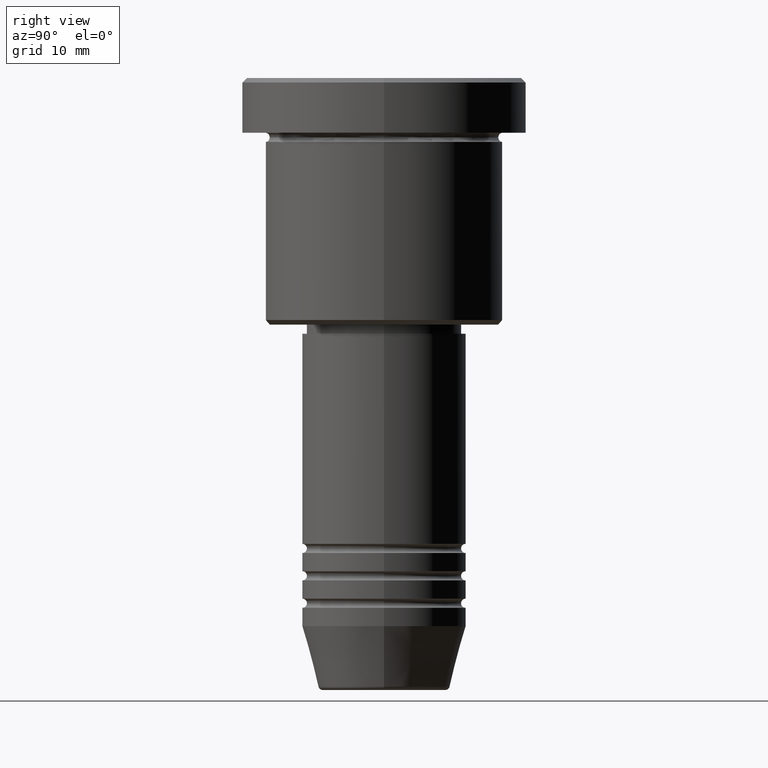
[diagram: clean part render]
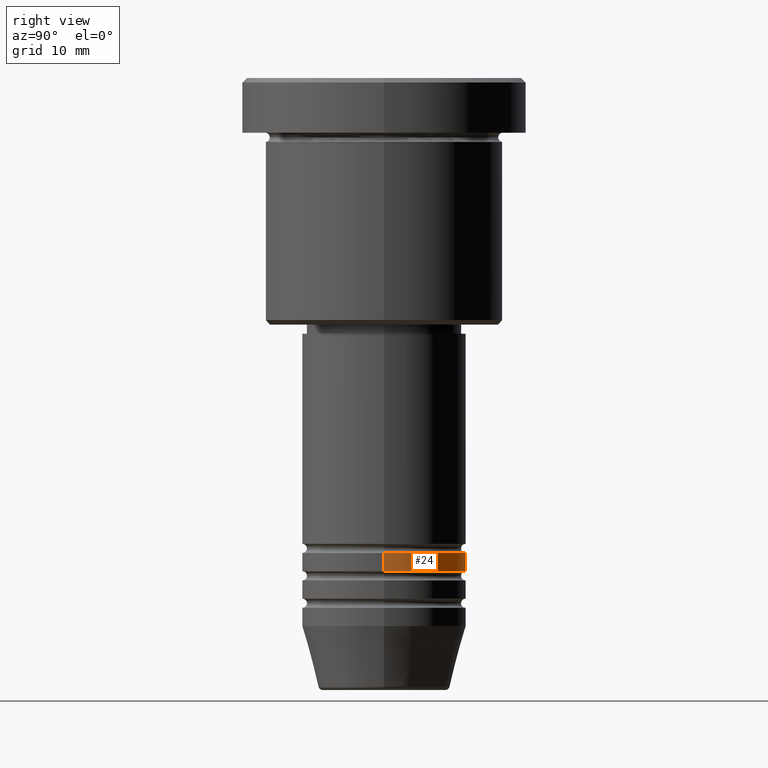
[diagram: same view with one face highlighted and labeled with its STEP entity id]
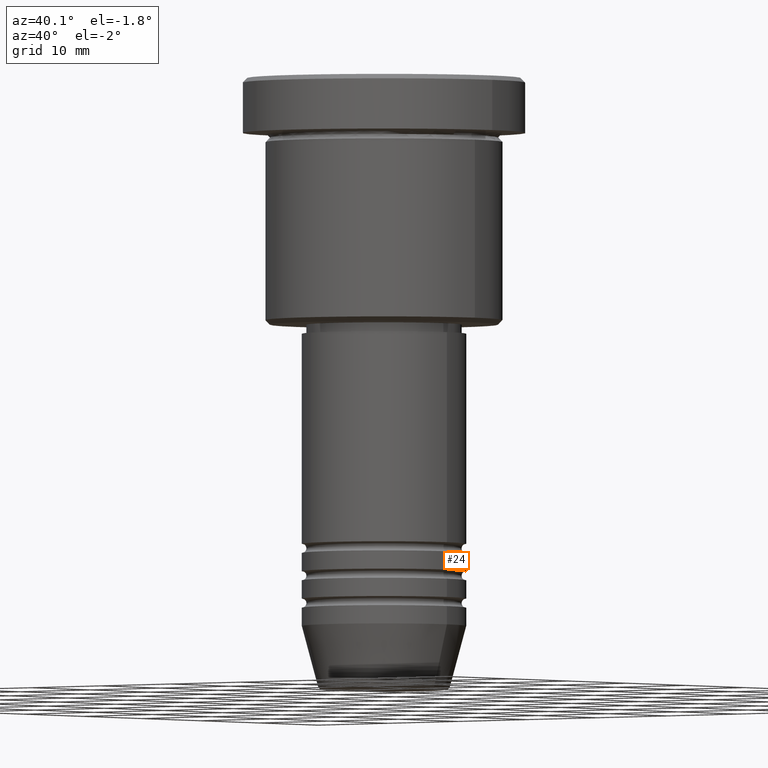
[diagram: same view with one face highlighted and labeled with its STEP entity id]
A machine part, right view. The second image highlights one B-rep face of the part: STEP entity #24.
A second angle (auxiliary view) of the same face is appended — the face is thin or edge-on in the first view.
In plain terms, the highlighted cylindrical surface (partial cylindrical patch) has radius 9 mm, axis along (-0, -0, 1).
Its self-contained STEP definition (entity closure, byte-faithful):
#24 = ADVANCED_FACE ( 'NONE', ( #1114 ), #189, .T. ) ;
#25 = DIRECTION ( 'NONE',  ( -0.000000000000000000, -0.000000000000000000, 1.000000000000000000 ) ) ;
#50 = ORIENTED_EDGE ( 'NONE', *, *, #260, .T. ) ;
#65 = EDGE_CURVE ( 'NONE', #514, #1129, #1011, .T. ) ;
#74 = DIRECTION ( 'NONE',  ( -0.000000000000000000, -0.000000000000000000, 1.000000000000000000 ) ) ;
#113 = DIRECTION ( 'NONE',  ( -0.000000000000000000, -0.000000000000000000, 1.000000000000000000 ) ) ;
#118 = CARTESIAN_POINT ( 'NONE',  ( 9.000000000000000000, 0.000000000000000000, 0.000000000000000000 ) ) ;
#189 = CYLINDRICAL_SURFACE ( 'NONE', #591, 9.000000000000000000 ) ;
#260 = EDGE_CURVE ( 'NONE', #514, #462, #777, .T. ) ;
#277 = ORIENTED_EDGE ( 'NONE', *, *, #65, .F. ) ;
#359 = DIRECTION ( 'NONE',  ( 1.000000000000000000, 0.000000000000000000, 0.000000000000000000 ) ) ;
#415 = LINE ( 'NONE', #1052, #536 ) ;
#433 = CARTESIAN_POINT ( 'NONE',  ( 0.000000000000000000, 0.000000000000000000, -53.99999999999997868 ) ) ;
#453 = EDGE_CURVE ( 'NONE', #1129, #498, #953, .T. ) ;
#462 = VERTEX_POINT ( 'NONE', #505 ) ;
#498 = VERTEX_POINT ( 'NONE', #866 ) ;
#505 = CARTESIAN_POINT ( 'NONE',  ( -9.000000000000000000, 1.102182119232617714E-15, -53.99999999999997868 ) ) ;
#514 = VERTEX_POINT ( 'NONE', #760 ) ;
#531 = AXIS2_PLACEMENT_3D ( 'NONE', #928, #113, #840 ) ;
#536 = VECTOR ( 'NONE', #793, 1000.000000000000000 ) ;
#563 = CARTESIAN_POINT ( 'NONE',  ( 0.000000000000000000, 0.000000000000000000, 0.000000000000000000 ) ) ;
#574 = DIRECTION ( 'NONE',  ( -0.000000000000000000, -0.000000000000000000, 1.000000000000000000 ) ) ;
#591 = AXIS2_PLACEMENT_3D ( 'NONE', #563, #25, #663 ) ;
#624 = EDGE_LOOP ( 'NONE', ( #50, #1023, #679, #277 ) ) ;
#663 = DIRECTION ( 'NONE',  ( 1.000000000000000000, 0.000000000000000000, 0.000000000000000000 ) ) ;
#679 = ORIENTED_EDGE ( 'NONE', *, *, #453, .F. ) ;
#760 = CARTESIAN_POINT ( 'NONE',  ( 9.000000000000000000, 0.000000000000000000, -53.99999999999997868 ) ) ;
#777 = CIRCLE ( 'NONE', #1022, 9.000000000000000000 ) ;
#787 = CARTESIAN_POINT ( 'NONE',  ( 9.000000000000000000, 0.000000000000000000, -51.99999999999997868 ) ) ;
#793 = DIRECTION ( 'NONE',  ( -0.000000000000000000, -0.000000000000000000, 1.000000000000000000 ) ) ;
#840 = DIRECTION ( 'NONE',  ( 1.000000000000000000, 0.000000000000000000, 0.000000000000000000 ) ) ;
#866 = CARTESIAN_POINT ( 'NONE',  ( -9.000000000000000000, 1.102182119232617714E-15, -51.99999999999997868 ) ) ;
#928 = CARTESIAN_POINT ( 'NONE',  ( 0.000000000000000000, 0.000000000000000000, -51.99999999999997868 ) ) ;
#953 = CIRCLE ( 'NONE', #531, 9.000000000000000000 ) ;
#1011 = LINE ( 'NONE', #118, #1081 ) ;
#1022 = AXIS2_PLACEMENT_3D ( 'NONE', #433, #74, #359 ) ;
#1023 = ORIENTED_EDGE ( 'NONE', *, *, #1111, .T. ) ;
#1052 = CARTESIAN_POINT ( 'NONE',  ( -9.000000000000000000, 1.102182119232617714E-15, 0.000000000000000000 ) ) ;
#1081 = VECTOR ( 'NONE', #574, 1000.000000000000000 ) ;
#1111 = EDGE_CURVE ( 'NONE', #462, #498, #415, .T. ) ;
#1114 = FACE_OUTER_BOUND ( 'NONE', #624, .T. ) ;
#1129 = VERTEX_POINT ( 'NONE', #787 ) ;